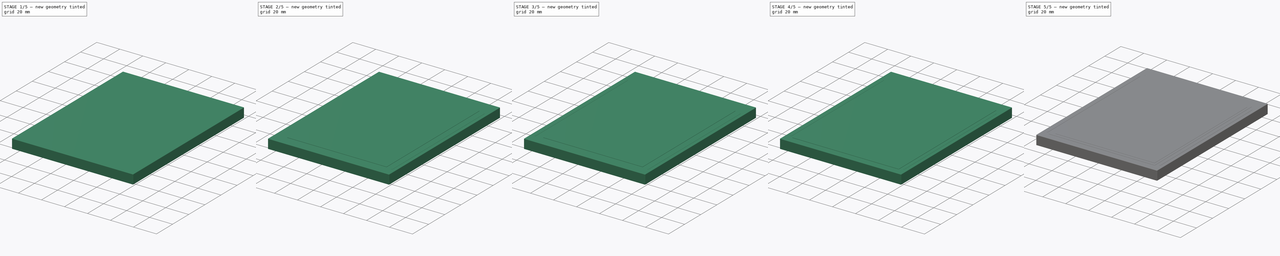
[diagram: build sequence overview — one tinted view per stage of 5, left to right]
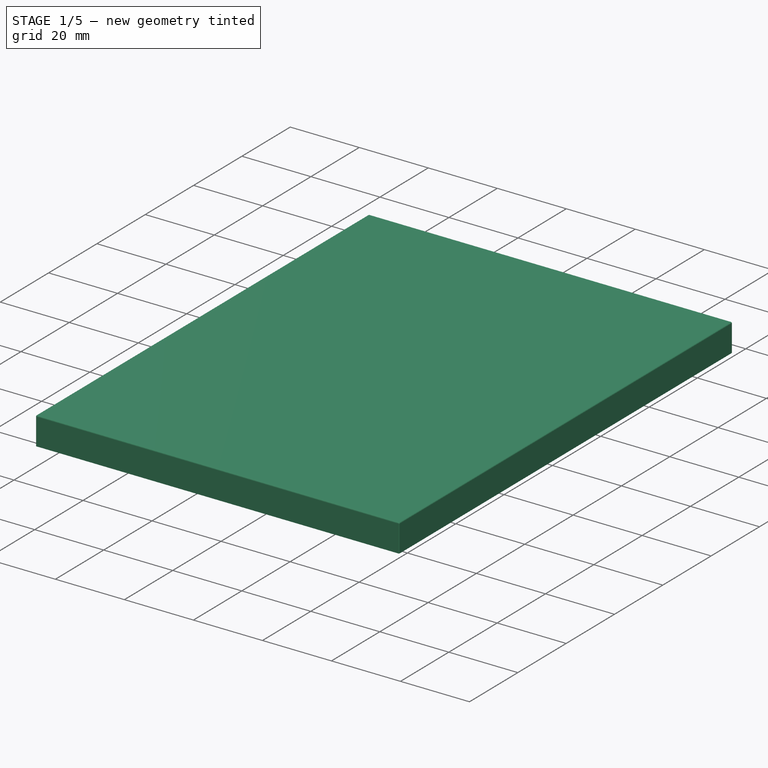
[diagram: stage 1 of 5 — iso view after this stage's code; geometry added in this stage tinted green]
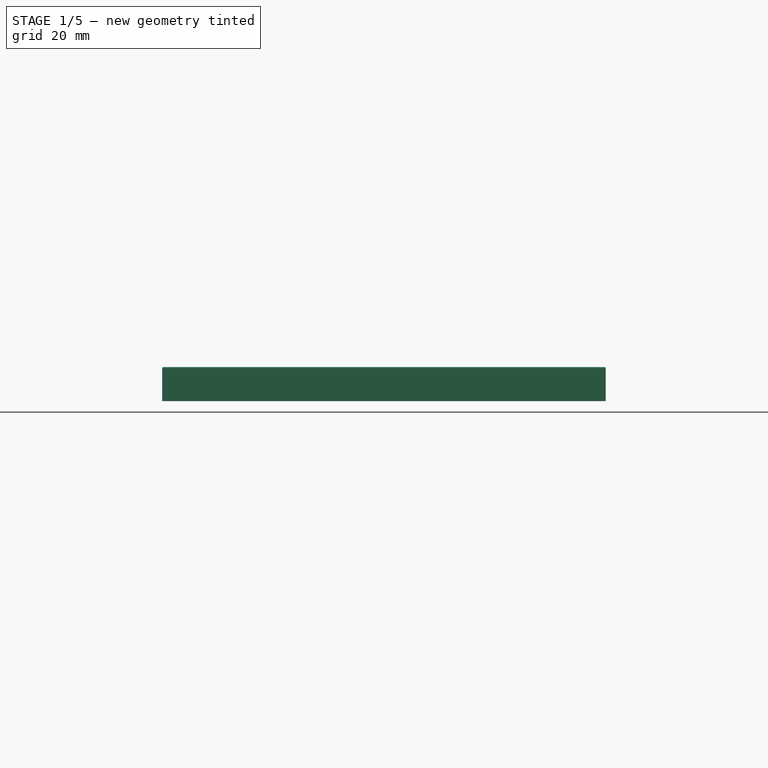
[diagram: stage 1 of 5 — front view after this stage's code; geometry added in this stage tinted green]
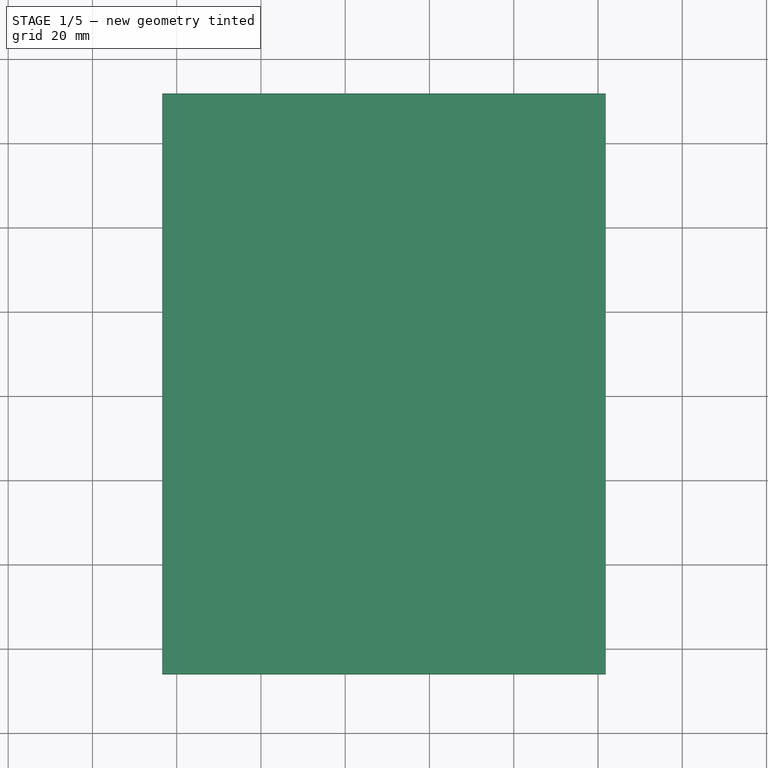
[diagram: stage 1 of 5 — top view after this stage's code; geometry added in this stage tinted green]
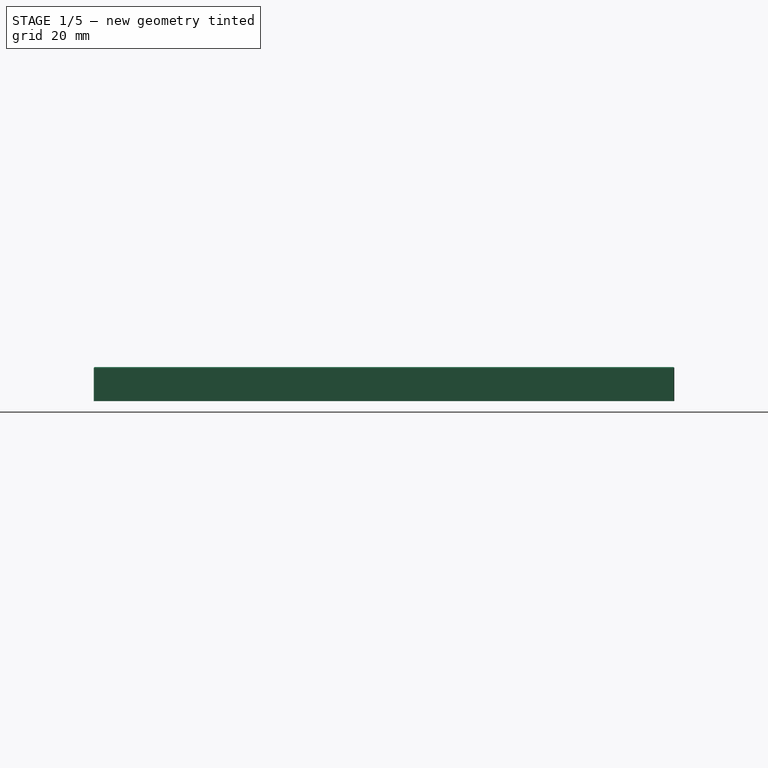
[diagram: stage 1 of 5 — right view after this stage's code; geometry added in this stage tinted green]
FCSTD DOCUMENT  (FreeCAD 0.17R11223 (Git))
Label: EA_eDIP320-XXX_4
License: All rights reserved
LicenseURL: http://en.wikipedia.org/wiki/All_rights_reserved
objects: Part::Fillet×17, Part::Box×7, Sketcher::SketchObject×1, PartDesign::Pad×1, PartDesign::Body×1, Part::FeaturePython×1, Part::Cylinder×1, Part::MultiFuse×1
note: 31 computed .brp shape members not serialized (recipe doc carries the construction recipe); baked Part::Feature solids carry a one-line shape summary decoded from their .brp

FEATURE [Sketcher::SketchObject] Sketch
  MapMode = 5
  Support = -> [XY_Plane]
  sketch-geometry (4):
    g0: LineSegment StartX=-23.44 StartY=11.75 StartZ=0 EndX=81.86 EndY=11.75 EndZ=0
    g1: LineSegment StartX=81.86 StartY=11.75 StartZ=0 EndX=81.86 EndY=-126.05 EndZ=0
    g2: LineSegment StartX=81.86 StartY=-126.05 StartZ=0 EndX=-23.44 EndY=-126.05 EndZ=0
    g3: LineSegment StartX=-23.44 StartY=-126.05 StartZ=0 EndX=-23.44 EndY=11.75 EndZ=0
  constraints (12):
    c: Coincident(g0,g1)
    c: Coincident(g1,g2)
    c: Coincident(g2,g3)
    c: Coincident(g3,g0)
    c: Horizontal(g0)
    c: Horizontal(g2)
    c: Vertical(g1)
    c: Vertical(g3)
    c: DistanceX(g0,g0) = 105.3
    c: DistanceY(g2,g0) = 137.8
    c: DistanceX(g0,g-1) = 23.44
    c: DistanceY(g-1,g0) = 11.75
FEATURE [PartDesign::Pad] Pad
  Length = 8.1
  Length2 = 100
  Profile = -> Sketch
  Type = 0
FEATURE [Part::Fillet] Fillet
  Base = -> Pad
  Edges = 4 edges r=0.3: [Edge4,Edge7,Edge10,Edge12]
  Placement = pos=(0,0,2) rot=(0,0,1;0rad)
FEATURE [Part::Fillet] Fillet013
  Base = -> Fillet
  Edges = 1 edges r=0.2: [Edge1]
FEATURE [Part::Fillet] Fillet014
  Base = -> Fillet013
  Edges = 1 edges r=0.2: [Edge23]
FEATURE [Part::Fillet] Fillet015
  Base = -> Fillet014
  Edges = 1 edges r=0.2: [Edge15]
FEATURE [Part::Fillet] Fillet016
  Base = -> Fillet015
  Edges = 1 edges r=0.2: [Edge16]
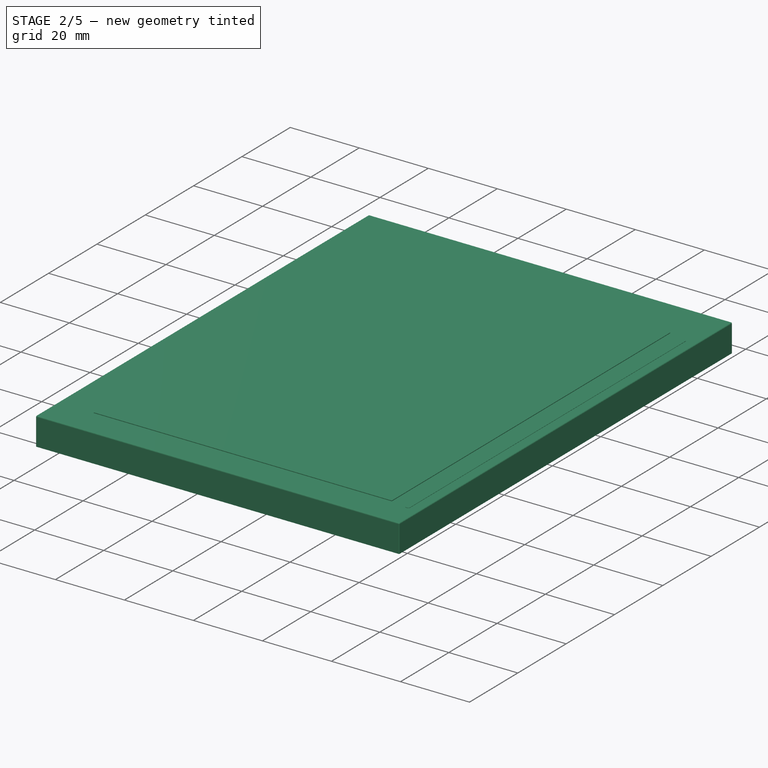
[diagram: stage 2 of 5 — iso view after this stage's code; geometry added in this stage tinted green]
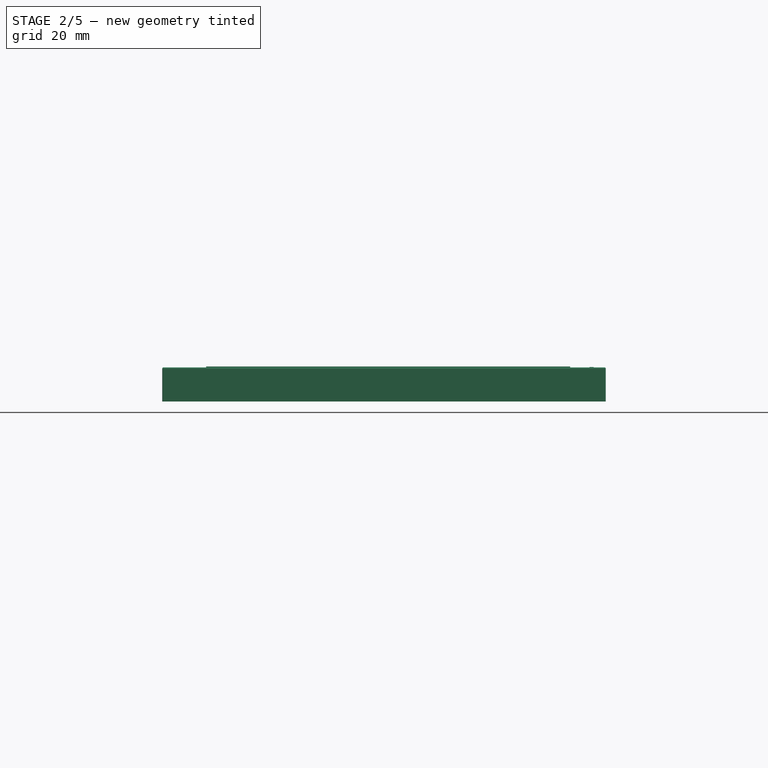
[diagram: stage 2 of 5 — front view after this stage's code; geometry added in this stage tinted green]
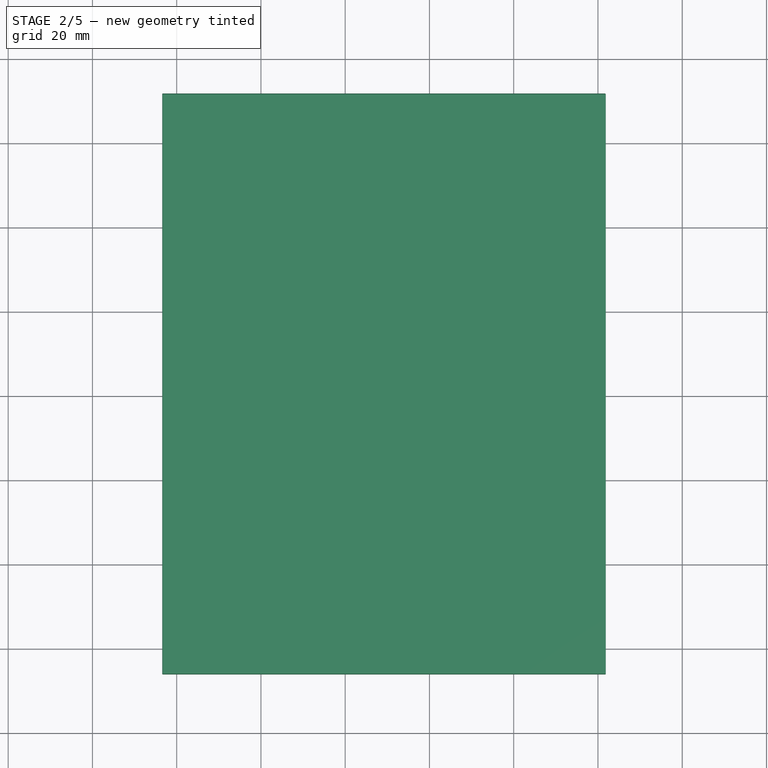
[diagram: stage 2 of 5 — top view after this stage's code; geometry added in this stage tinted green]
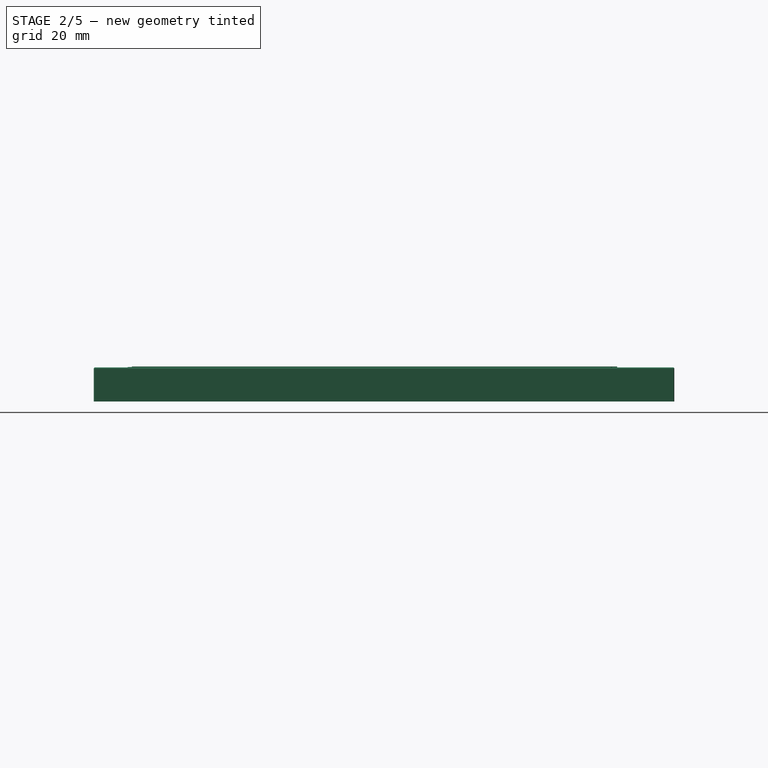
[diagram: stage 2 of 5 — right view after this stage's code; geometry added in this stage tinted green]
FEATURE [Part::Box] Box005  label="Kub003"
  AttacherType = Attacher::AttachEngine3D
  Height = 0.3
  Length = 1
  Placement = pos=(78,-118,9.9) rot=(0,0,1;0rad)
  Width = 115
FEATURE [Part::Fillet] Fillet007
  Base = -> Box005
  Edges = 1 edges r=0.45: [Edge3]
FEATURE [Part::Fillet] Fillet008
  Base = -> Fillet007
  Edges = 1 edges r=0.45: [Edge15]
FEATURE [Part::Fillet] Fillet011
  Base = -> Fillet008
  Edges = 1 edges r=0.45: [Edge14]
FEATURE [Part::Box] Box006  label="Display"
  AttacherType = Attacher::AttachEngine3D
  Height = 0.3
  Length = 86.38
  Placement = pos=(-13,-117,10) rot=(0,0,1;0rad)
  Width = 115.18
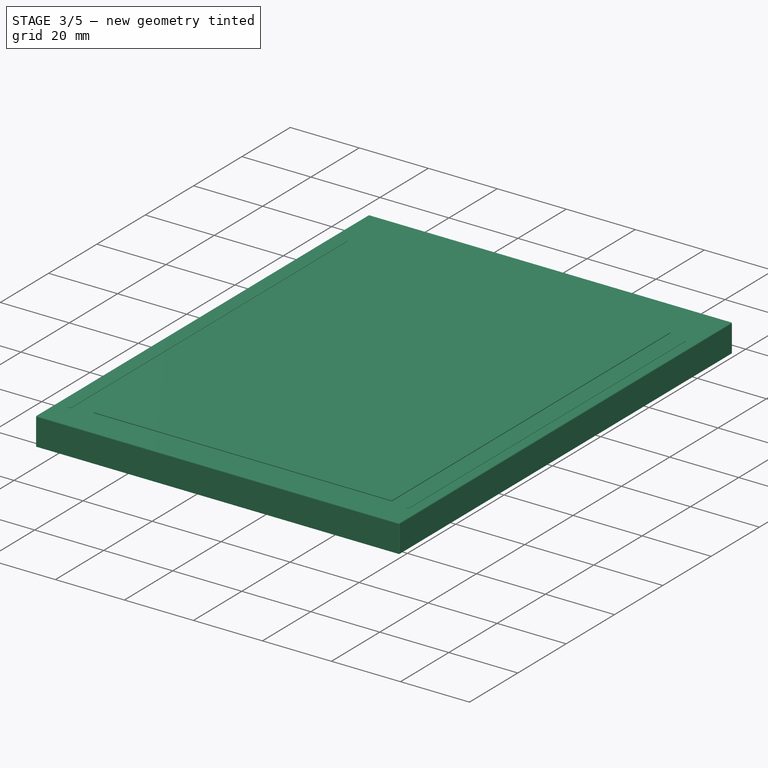
[diagram: stage 3 of 5 — iso view after this stage's code; geometry added in this stage tinted green]
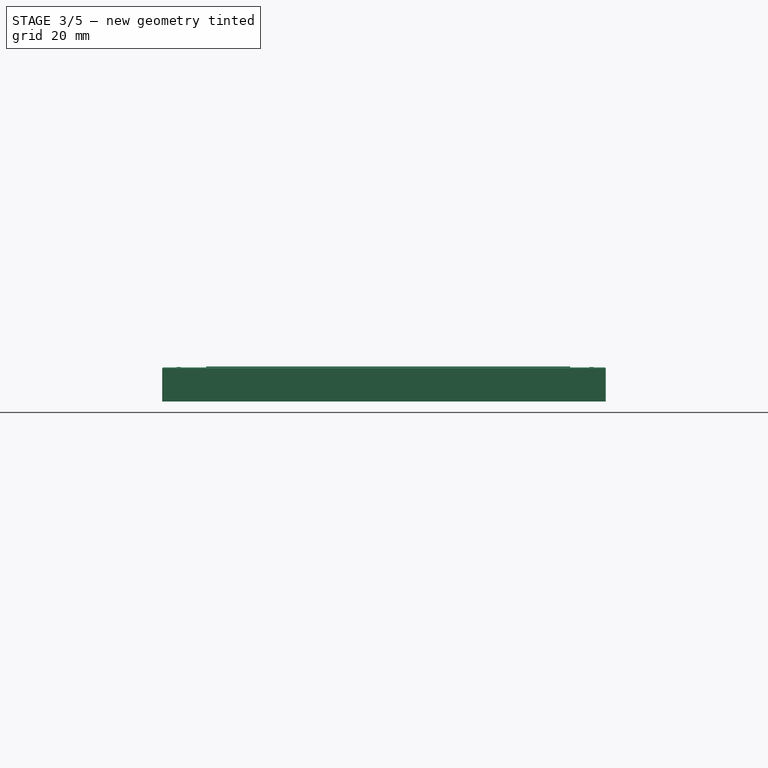
[diagram: stage 3 of 5 — front view after this stage's code; geometry added in this stage tinted green]
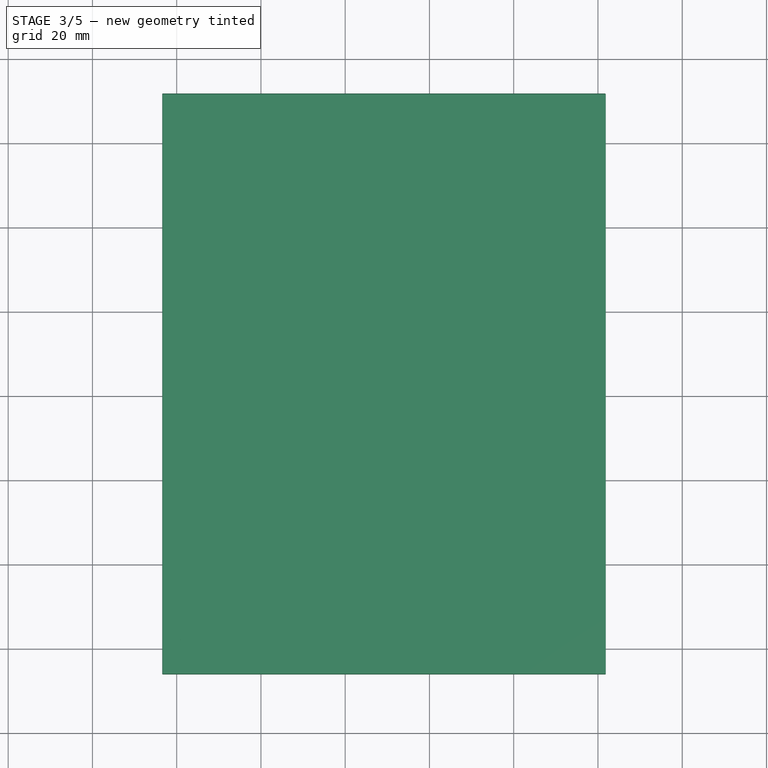
[diagram: stage 3 of 5 — top view after this stage's code; geometry added in this stage tinted green]
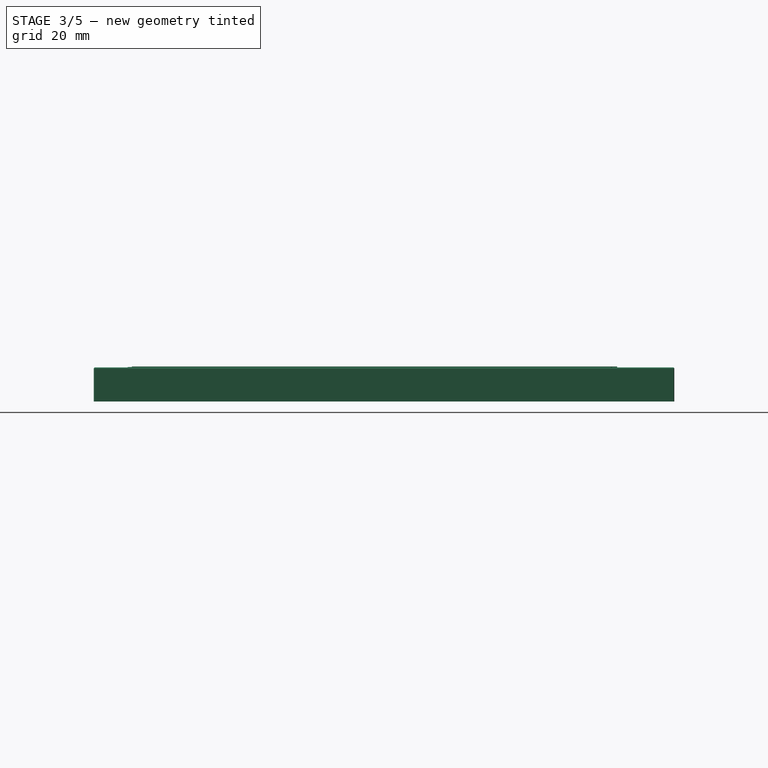
[diagram: stage 3 of 5 — right view after this stage's code; geometry added in this stage tinted green]
FEATURE [Part::Box] Box004  label="Kub002"
  AttacherType = Attacher::AttachEngine3D
  Height = 0.3
  Length = 1
  Placement = pos=(-20,-118,9.9) rot=(0,0,1;0rad)
  Width = 115
FEATURE [Part::Fillet] Fillet005
  Base = -> Box004
  Edges = 1 edges r=0.45: [Edge3]
FEATURE [Part::Fillet] Fillet006
  Base = -> Fillet005
  Edges = 1 edges r=0.45: [Edge15]
FEATURE [Part::Fillet] Fillet009
  Base = -> Fillet006
  Edges = 1 edges r=0.45: [Edge16]
FEATURE [Part::Fillet] Fillet010
  Base = -> Fillet009
  Edges = 1 edges r=0.45: [Edge16]
FEATURE [Part::Fillet] Fillet012
  Base = -> Fillet011
  Edges = 1 edges r=0.45: [Edge16]
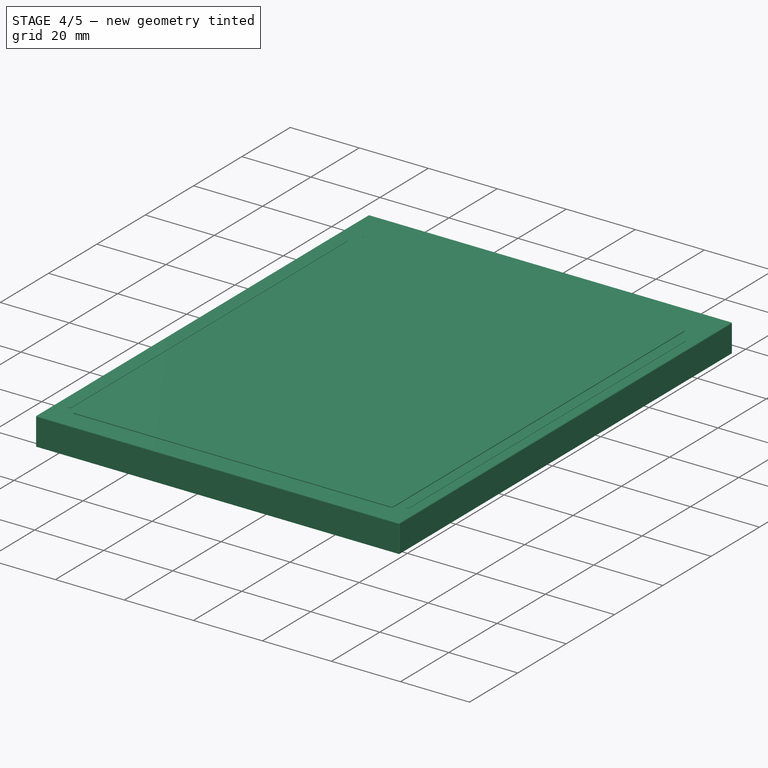
[diagram: stage 4 of 5 — iso view after this stage's code; geometry added in this stage tinted green]
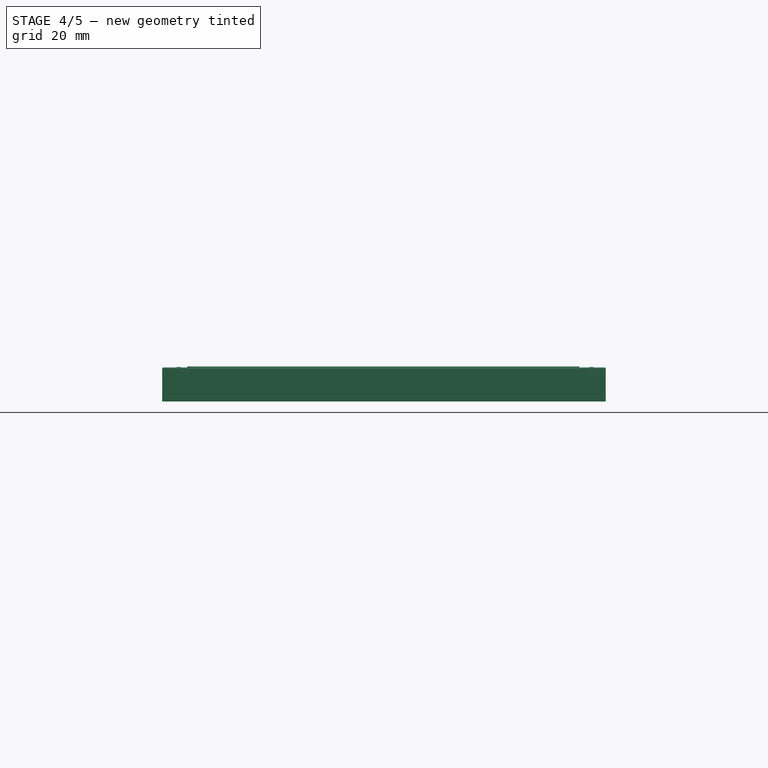
[diagram: stage 4 of 5 — front view after this stage's code; geometry added in this stage tinted green]
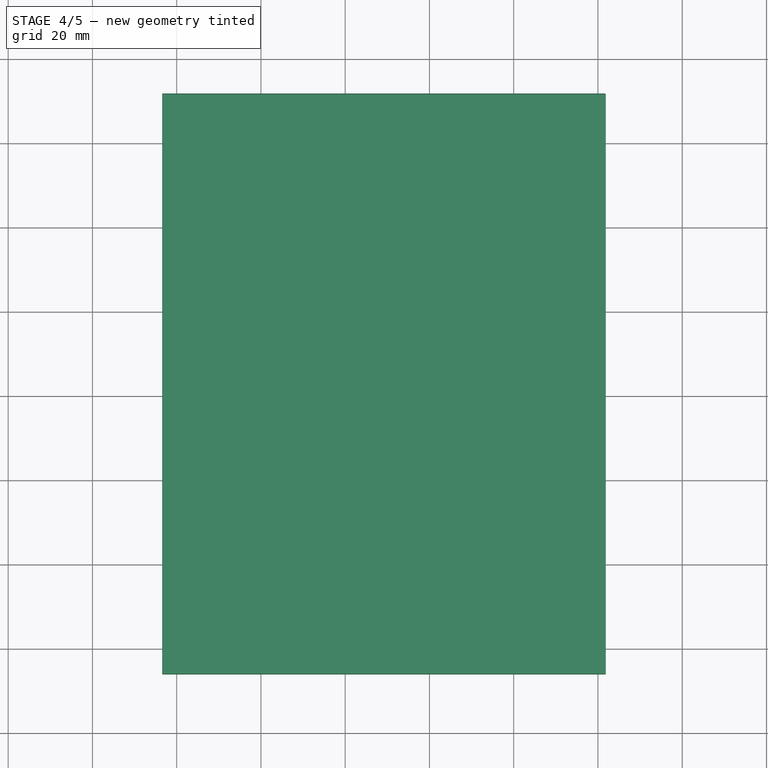
[diagram: stage 4 of 5 — top view after this stage's code; geometry added in this stage tinted green]
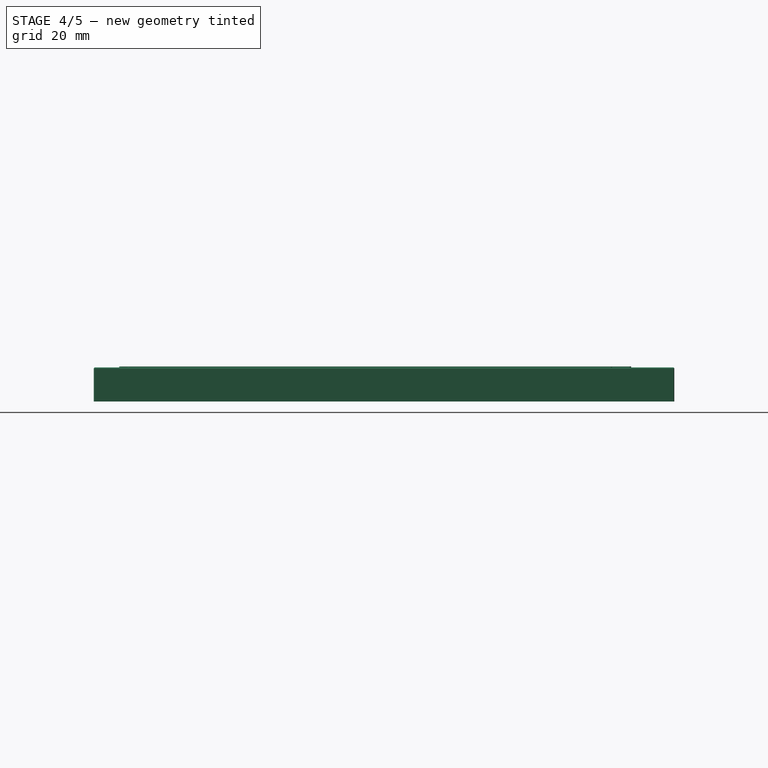
[diagram: stage 4 of 5 — right view after this stage's code; geometry added in this stage tinted green]
FEATURE [Part::Box] Box003  label="DisplayBase"
  AttacherType = Attacher::AttachEngine3D
  Height = 0.3
  Length = 92.6
  Placement = pos=(-17,-120,10) rot=(0,0,1;0rad)
  Width = 121
FEATURE [Part::Fillet] Fillet001
  Base = -> Box003
  Edges = 1 edges r=0.5: [Edge3]
FEATURE [Part::Fillet] Fillet002
  Base = -> Fillet001
  Edges = 1 edges r=0.5: [Edge3]
FEATURE [Part::Fillet] Fillet003
  Base = -> Fillet002
  Edges = 1 edges r=0.5: [Edge17]
FEATURE [Part::Cylinder] Cylinder
  Angle = 360
  AttacherType = Attacher::AttachEngine3D
  Height = 0.3
  Placement = pos=(-17,1,10) rot=(0,0,1;0rad)
  Radius = 0.5
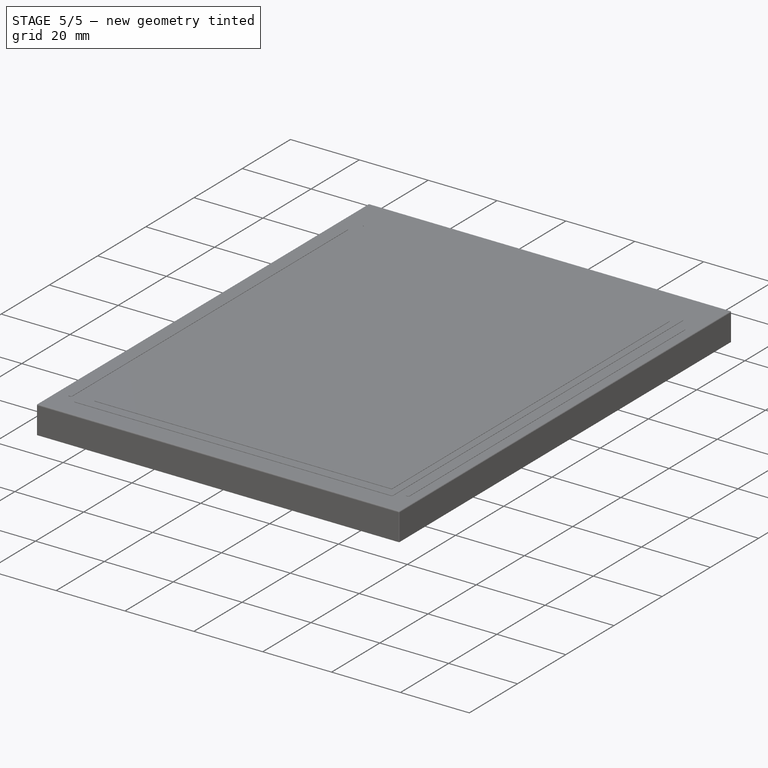
[diagram: stage 5 of 5 — iso view after this stage's code; geometry added in this stage tinted green]
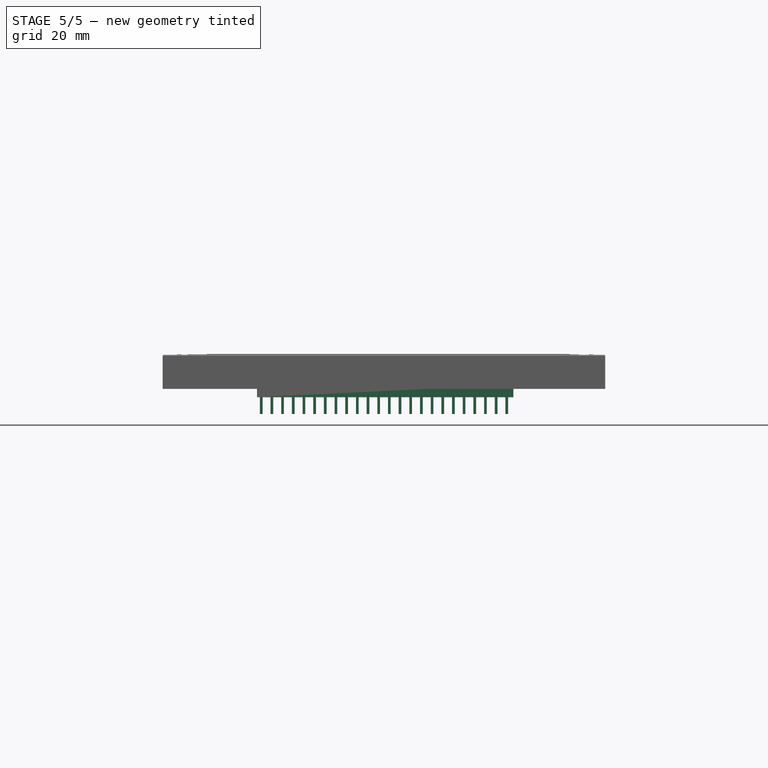
[diagram: stage 5 of 5 — front view after this stage's code; geometry added in this stage tinted green]
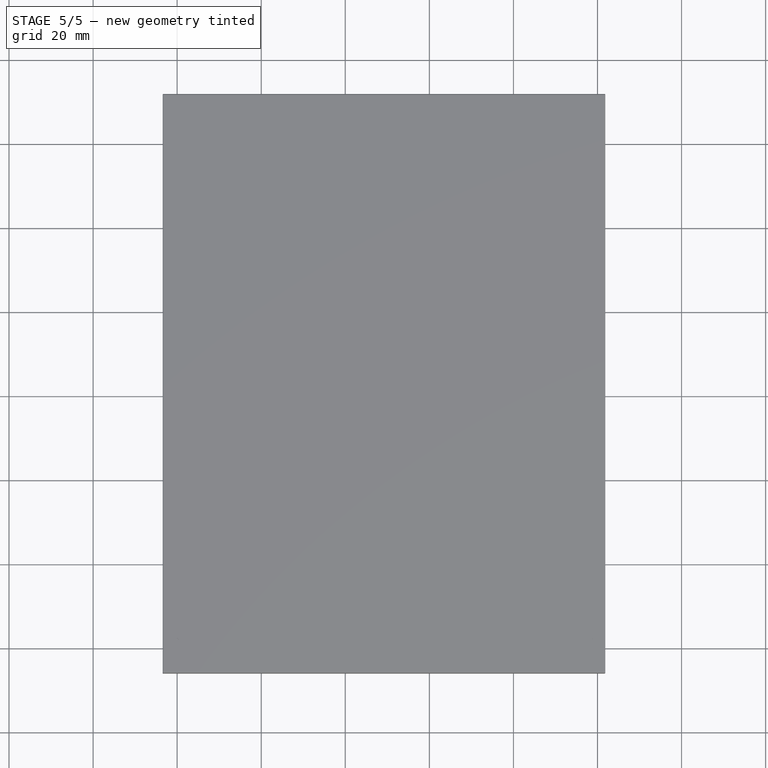
[diagram: stage 5 of 5 — top view after this stage's code; geometry added in this stage tinted green]
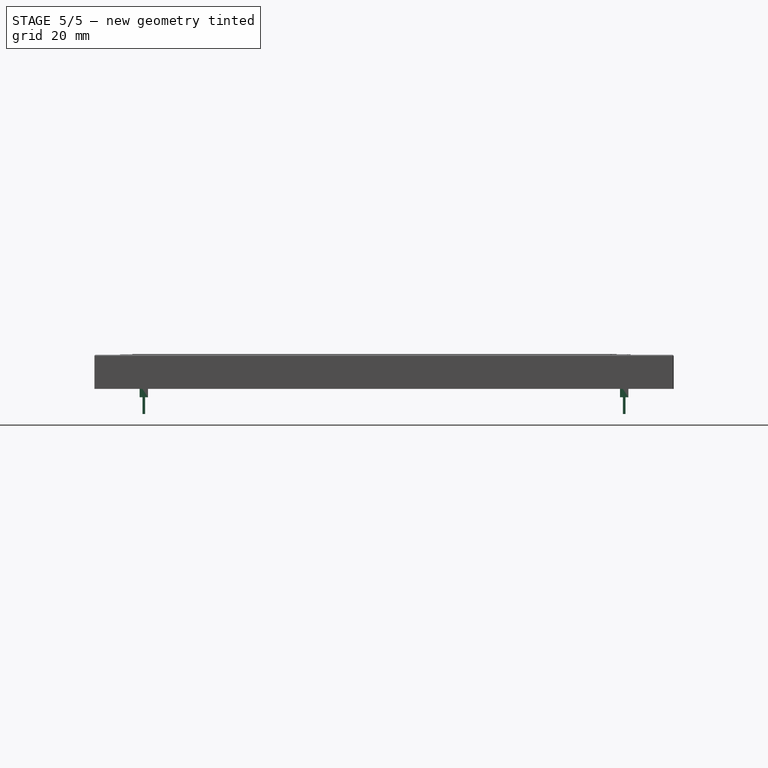
[diagram: stage 5 of 5 — right view after this stage's code; geometry added in this stage tinted green]
FEATURE [PartDesign::Body] Body
  Group = -> [Sketch,Pad]
  Origin = -> BodyOrigin
  Tip = -> Pad
FEATURE [Part::Box] Box  label="Kub"
  AttacherType = Attacher::AttachEngine3D
  Height = 3
  Length = 61
  Placement = pos=(-1,-1,0) rot=(0,0,1;0rad)
  Width = 2
FEATURE [Part::Box] Box001  label="Kub001"
  AttacherType = Attacher::AttachEngine3D
  Height = 3
  Length = 61
  Placement = pos=(-1,-115.3,0) rot=(0,0,1;0rad)
  Width = 2
FEATURE [Part::Box] Box002  label="Pin"
  AttacherType = Attacher::AttachEngine3D
  Height = 4.5
  Length = 0.64
  Placement = pos=(-0.32,-0.32,-4) rot=(0,0,1;0rad)
  Width = 0.64
FEATURE [Part::FeaturePython] Array  label="Pins"  # Draft array (typed FeaturePython)
  Angle = 360
  ArrayType = 0
  Axis = (0,0,1)
  Base = -> Box002
  Center = (0,0,0)
  Fuse = false
  IntervalAxis = (0,0,0)
  IntervalX = (2.54,0,0)
  IntervalY = (0,-114.3,0)
  IntervalZ = (0,0,0)
  NumberPolar = 1
  NumberX = 24
  NumberY = 2
  NumberZ = 1
FEATURE [Part::Fillet] Fillet004
  Base = -> Fillet003
  Edges = 1 edges r=0.5: [Edge15]
FEATURE [Part::MultiFuse] Fusion  label="DisplayBase001"
  Placement = pos=(0,0,-0.1) rot=(0,0,1;0rad)
  Shapes = -> [Fillet004,Cylinder]
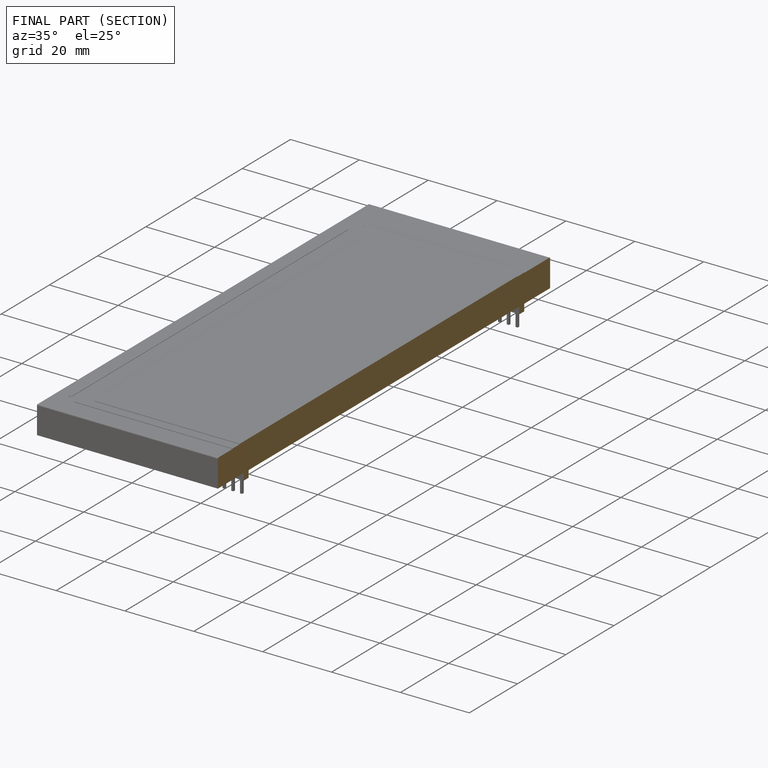
[diagram: finished part — half-section view (interior)]
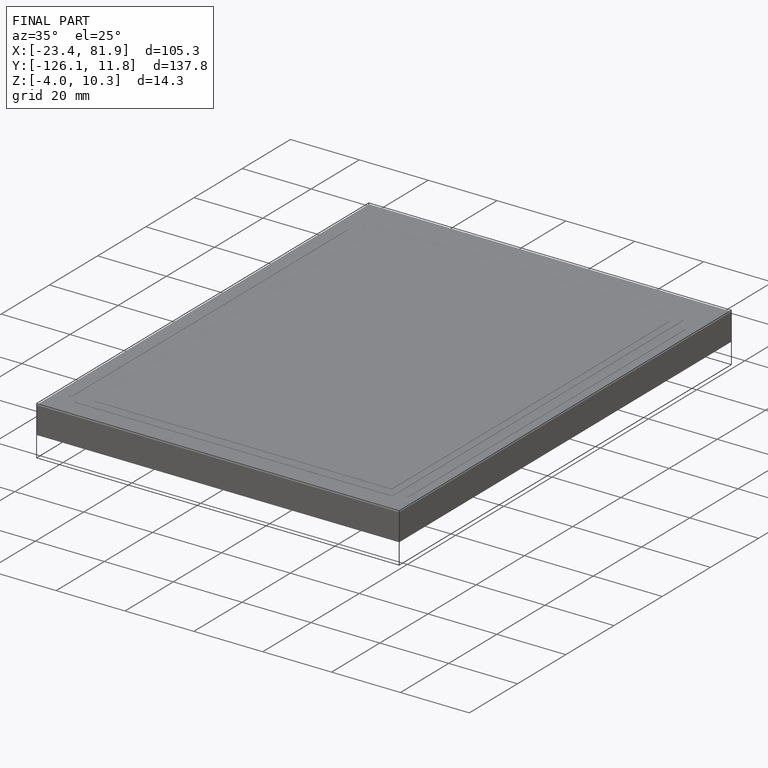
[diagram: finished part — iso view with bounding-box wireframe]
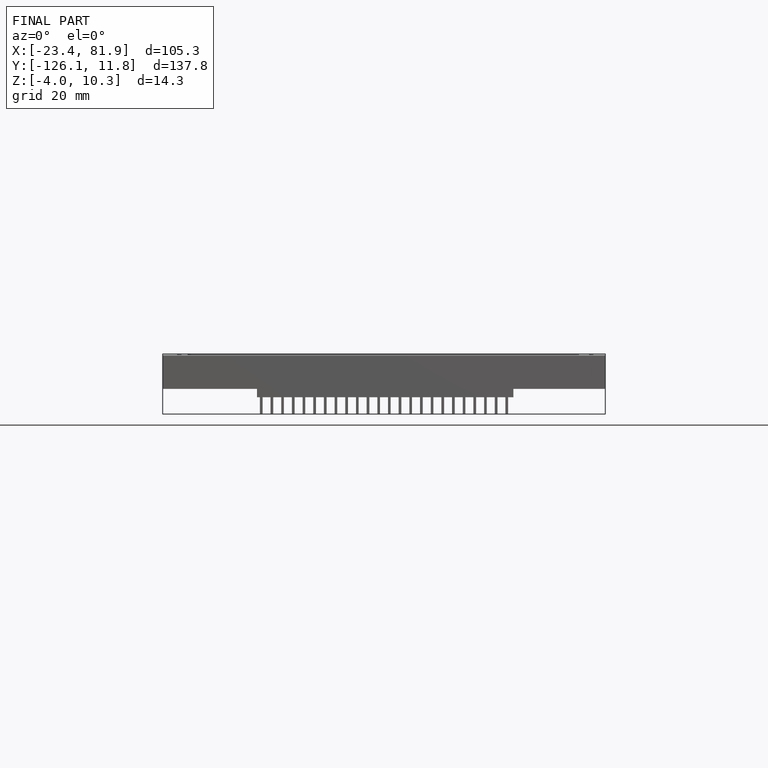
[diagram: finished part — front view with bounding-box wireframe]
